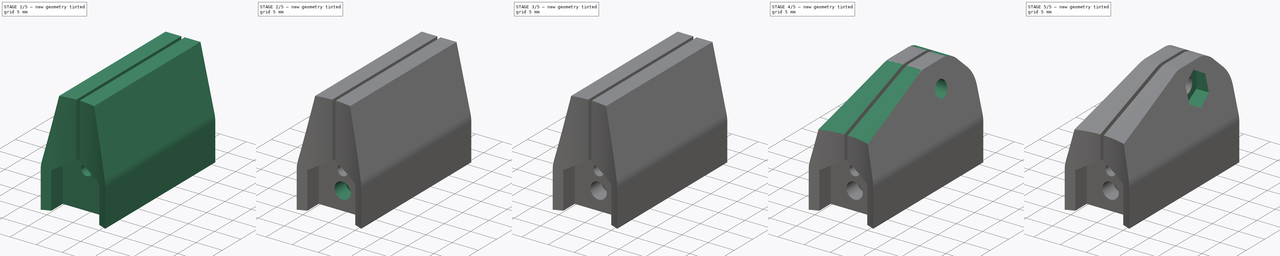
[diagram: build sequence overview — one tinted view per stage of 5, left to right]
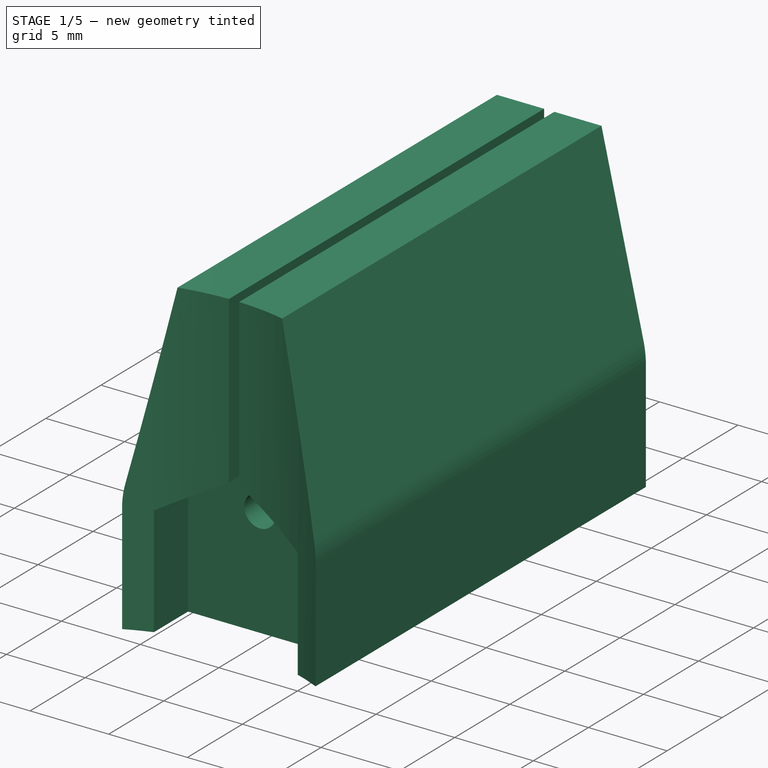
[diagram: stage 1 of 5 — iso view after this stage's code; geometry added in this stage tinted green]
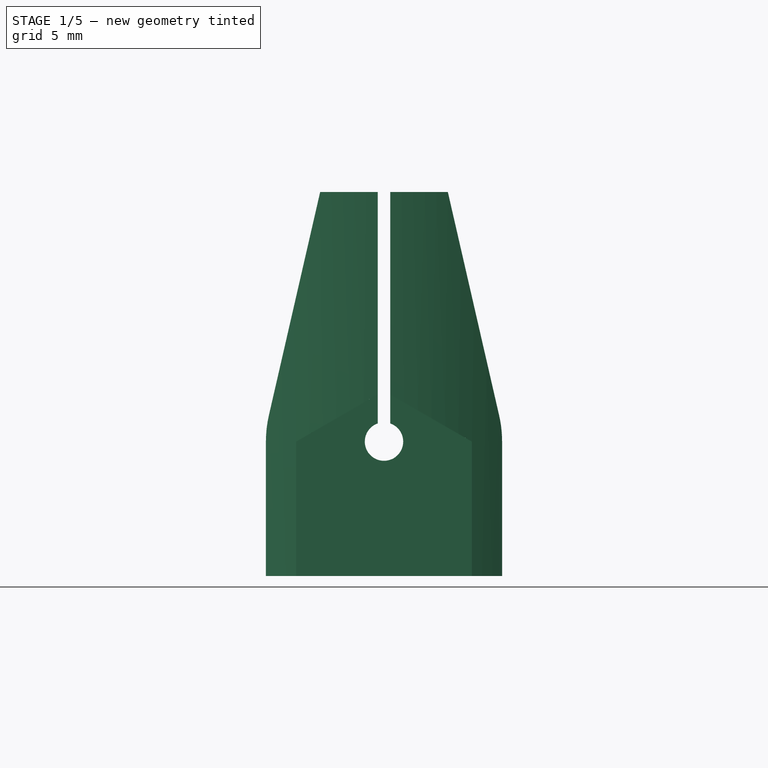
[diagram: stage 1 of 5 — front view after this stage's code; geometry added in this stage tinted green]
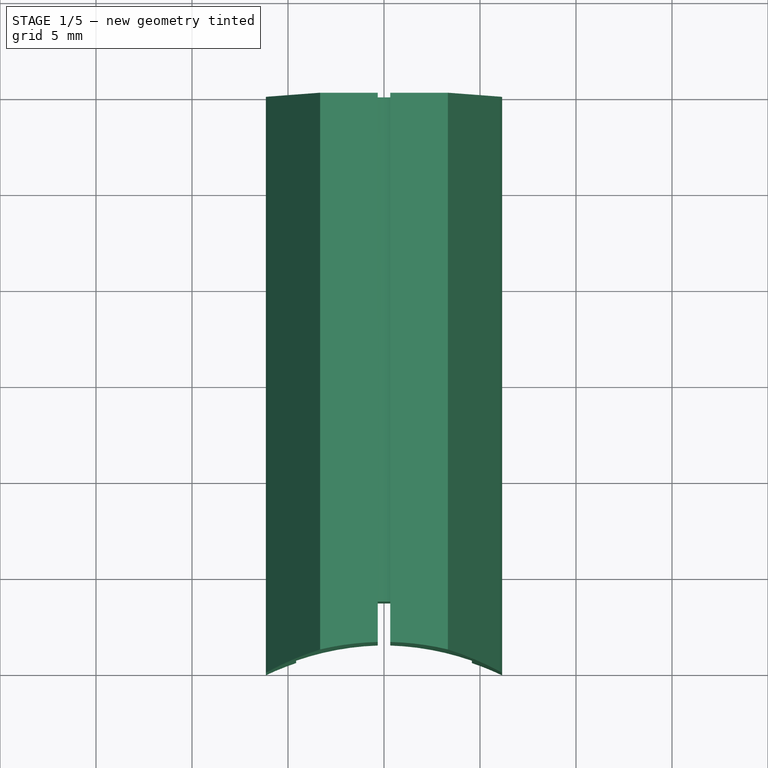
[diagram: stage 1 of 5 — top view after this stage's code; geometry added in this stage tinted green]
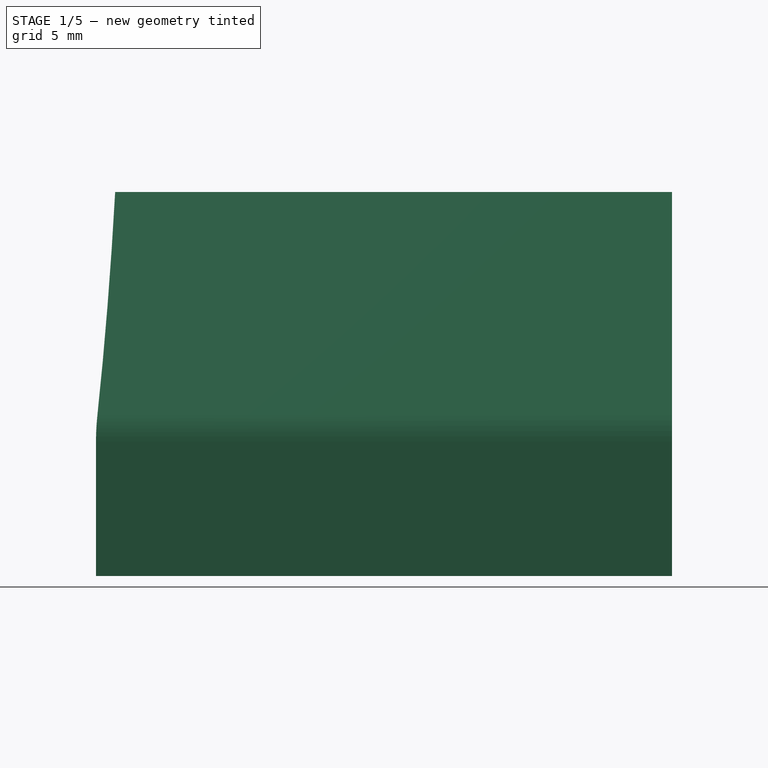
[diagram: stage 1 of 5 — right view after this stage's code; geometry added in this stage tinted green]
FCSTD DOCUMENT  (FreeCAD 0.16RUnknown)
Label: joint-base-i.010.3
License: All rights reserved
LicenseURL: http://en.wikipedia.org/wiki/All_rights_reserved
objects: Sketcher::SketchObject×11, PartDesign::Pocket×7, Part::Fillet×5, Part::Extrusion×4, Part::Cut×3, Part::Chamfer×2
note: 39 computed .brp shape members not serialized (recipe doc carries the construction recipe); baked Part::Feature solids carry a one-line shape summary decoded from their .brp

FEATURE [Sketcher::SketchObject] Sketch
  Placement = pos=(0,0,0) rot=(-1,0,0;4.71239rad)
  sketch-geometry (15):
    g0: Circle [constr] CenterX=0 CenterY=0 CenterZ=0 NormalX=0 NormalY=0 NormalZ=1 Radius=4.15
    g1: ArcOfCircle CenterX=0 CenterY=0 CenterZ=0 NormalX=0 NormalY=0 NormalZ=1 Radius=6.15 StartAngle=2.91589 EndAngle=3.14159
    g2: ArcOfCircle CenterX=0 CenterY=0 CenterZ=0 NormalX=0 NormalY=0 NormalZ=1 Radius=6.15 StartAngle=6.28319 EndAngle=6.50889
    g3: LineSegment [constr] StartX=4.15 StartY=0 StartZ=0 EndX=6.15 EndY=0 EndZ=0
    g4: LineSegment StartX=-6.15 StartY=3.44126e-05 StartZ=0 EndX=-6.15 EndY=-6.99997 EndZ=0
    g5: LineSegment StartX=-6.15 StartY=-6.99997 StartZ=0 EndX=6.15 EndY=-6.99997 EndZ=0
    g6: LineSegment StartX=6.15 StartY=-6.99997 StartZ=0 EndX=6.15 EndY=-1.6538e-08 EndZ=0
    g7: ArcOfCircle CenterX=0 CenterY=0 CenterZ=0 NormalX=0 NormalY=0 NormalZ=1 Radius=1 StartAngle=1.90181 EndAngle=7.52297
    g8: LineSegment [constr] StartX=-0.325 StartY=0.945714 StartZ=0 EndX=0.325 EndY=0.945714 EndZ=0
    g9: LineSegment StartX=-5.99401 StartY=1.37634 StartZ=0 EndX=-3.325 EndY=13 EndZ=0
    g10: LineSegment StartX=-3.325 StartY=13 StartZ=0 EndX=-0.325 EndY=13 EndZ=0
    g11: LineSegment StartX=-0.325 StartY=13 StartZ=0 EndX=-0.325 EndY=0.945714 EndZ=0
    g12: LineSegment StartX=5.99401 StartY=1.37634 StartZ=0 EndX=3.325 EndY=13 EndZ=0
    g13: LineSegment StartX=3.325 StartY=13 StartZ=0 EndX=0.325 EndY=13 EndZ=0
    g14: LineSegment StartX=0.325 StartY=13 StartZ=0 EndX=0.325 EndY=0.945714 EndZ=0
  constraints (44):
    c: Coincident(g0,g-1)
    c: Radius(g0) = 4.15
    c: Coincident(g0,g1)
    c: Coincident(g0,g2)
    c: Equal(g2,g1)
    c: Horizontal(g3)
    c: PointOnObject(g3,g0)
    c: PointOnObject(g3,g2)
    c: PointOnObject(g3,g-1)
    c: Coincident(g4,g5)
    c: Horizontal(g5)
    c: Coincident(g5,g6)
    c: Coincident(g1,g4)
    c: Coincident(g2,g6)
    c: DistanceX(g3,g3) = 2
    c: Vertical(g4)
    c: Vertical(g6)
    c: Tangent(g1,g4)
    c: Tangent(g2,g6)
    c: Coincident(g0,g7)
    c: Horizontal(g8)
    c: Coincident(g7,g8)
    c: Coincident(g7,g8)
    c: Radius(g7) = 1
    c: Coincident(g9,g10)
    c: Horizontal(g10)
    c: Coincident(g10,g11)
    c: Vertical(g11)
    c: Coincident(g12,g13)
    c: Horizontal(g13)
    c: Coincident(g13,g14)
    c: Vertical(g14)
    c: Coincident(g7,g14)
    c: Coincident(g7,g11)
    c: DistanceX(g8,g8) = 0.65
    c: Equal(g11,g14)
    c: Coincident(g1,g9)
    c: Coincident(g2,g12)
    c: Tangent(g1,g9)
    c: Tangent(g2,g12)
    c: DistanceX(g10,g10) = 3
    c: Equal(g10,g13)
    c: DistanceY(g-1,g9) = 13
    c: DistanceY(g4,g4) = 7
FEATURE [Part::Extrusion] Extrude
  Base = -> Sketch
  Dir = (0,30,0)
  Solid = true
FEATURE [Sketcher::SketchObject] Sketch001
  ExternalGeometry = -> [Extrude]
  Placement = pos=(0,0,-6.99997) rot=(1,0,0;3.14159rad)
  Support = -> Extrude [Face3]
  sketch-geometry (2):
    g0: LineSegment StartX=-6.15 StartY=0 StartZ=0 EndX=6.15 EndY=0 EndZ=0
    g1: ArcOfCircle CenterX=0 CenterY=12.91 CenterZ=0 NormalX=0 NormalY=0 NormalZ=1 Radius=14.3 StartAngle=4.26782 EndAngle=5.15696
  constraints (6):
    c: Horizontal(g0)
    c: Coincident(g0,g1)
    c: Coincident(g0,g-3)
    c: Coincident(g0,g1)
    c: Coincident(g0,g-3)
    c: Radius(g1) = 14.3
FEATURE [PartDesign::Pocket] Pocket
  Length = 5
  Sketch = -> Sketch001
  Type = 1
FEATURE [Sketcher::SketchObject] Sketch002
  ExternalGeometry = -> [Pocket]
  Placement = pos=(0,0,-6.99997) rot=(1,0,0;3.14159rad)
  Support = -> Pocket [Face6]
  sketch-geometry (4):
    g0: LineSegment StartX=-4.575 StartY=-0.638432 StartZ=0 EndX=4.575 EndY=-0.638432 EndZ=0
    g1: LineSegment StartX=4.575 StartY=-0.638432 StartZ=0 EndX=4.575 EndY=-3.73843 EndZ=0
    g2: LineSegment StartX=4.575 StartY=-3.73843 StartZ=0 EndX=-4.575 EndY=-3.73843 EndZ=0
    g3: LineSegment StartX=-4.575 StartY=-3.73843 StartZ=0 EndX=-4.575 EndY=-0.638432 EndZ=0
  constraints (12):
    c: Coincident(g0,g1)
    c: Coincident(g1,g2)
    c: Coincident(g2,g3)
    c: Coincident(g3,g0)
    c: Horizontal(g0)
    c: Horizontal(g2)
    c: Vertical(g1)
    c: Vertical(g3)
    c: PointOnObject(g0,g-3)
    c: PointOnObject(g0,g-3)
    c: DistanceX(g2,g2) = 9.15
    c: DistanceY(g1,g1) = 3.1
FEATURE [PartDesign::Pocket] Pocket001
  Length = 7
  Sketch = -> Sketch002
  Type = 0
FEATURE [Sketcher::SketchObject] Sketch003
  ExternalGeometry = -> [Pocket001]
  Placement = pos=(0,3.73843,0) rot=(1,0,0;1.5708rad)
  Support = -> Pocket001 [Face17]
  sketch-geometry (3):
    g0: LineSegment StartX=4.575 StartY=3.44126e-05 StartZ=0 EndX=-4.575 EndY=3.44126e-05 EndZ=0
    g1: LineSegment StartX=-4.575 StartY=3.44126e-05 StartZ=0 EndX=0 EndY=2.64141 EndZ=0
    g2: LineSegment StartX=0 StartY=2.64141 StartZ=0 EndX=4.575 EndY=3.44126e-05 EndZ=0
  constraints (8):
    c: Horizontal(g0)
    c: Coincident(g0,g1)
    c: Coincident(g1,g2)
    c: Coincident(g0,g2)
    c: Coincident(g0,g-4)
    c: Coincident(g0,g-3)
    c: PointOnObject(g1,g-2)
    c: Angle(g1,g2) = 2.0944
FEATURE [PartDesign::Pocket] Pocket002
  Length = 5
  Reversed = true
  Sketch = -> Sketch003
  Type = 1
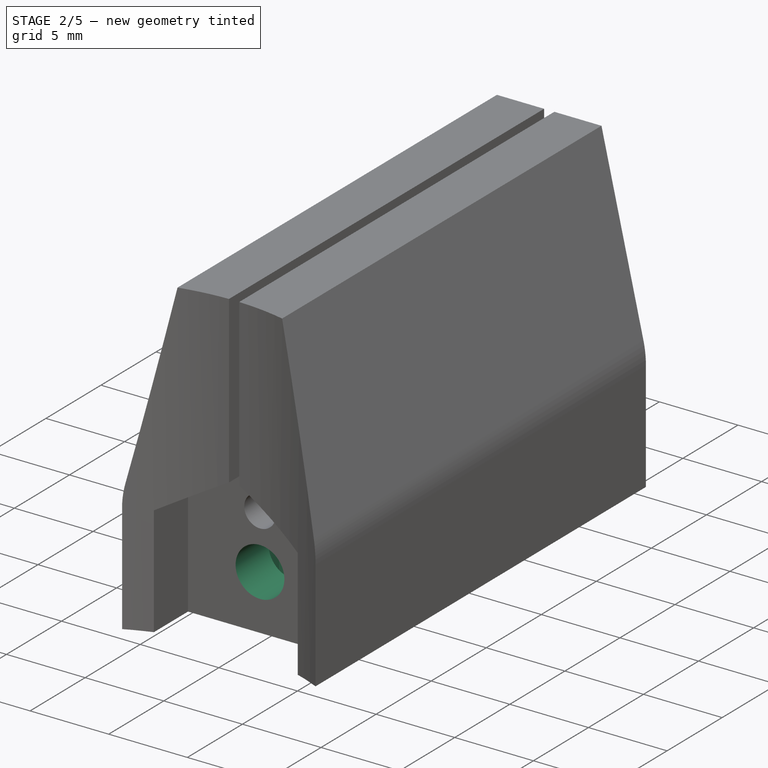
[diagram: stage 2 of 5 — iso view after this stage's code; geometry added in this stage tinted green]
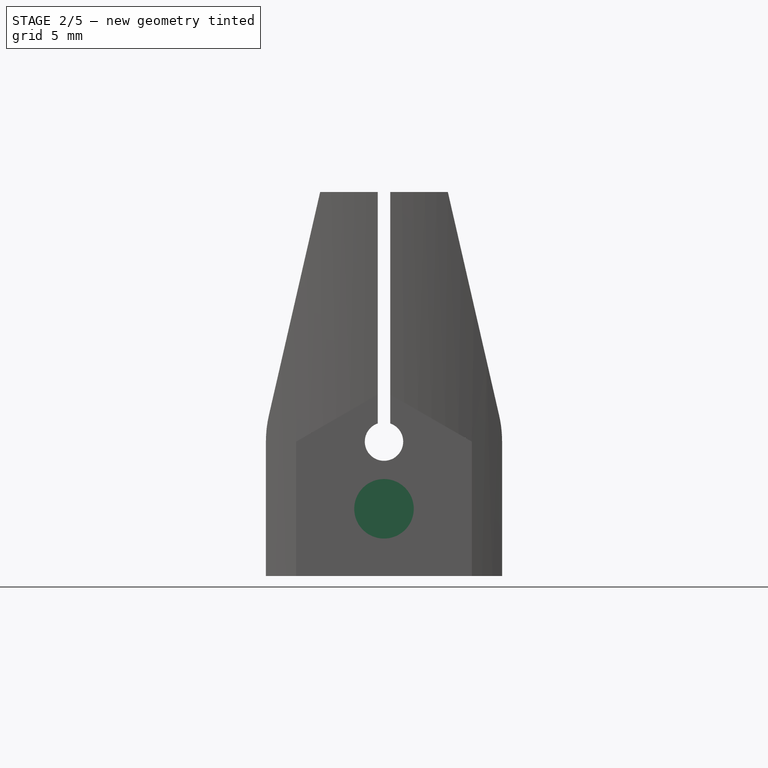
[diagram: stage 2 of 5 — front view after this stage's code; geometry added in this stage tinted green]
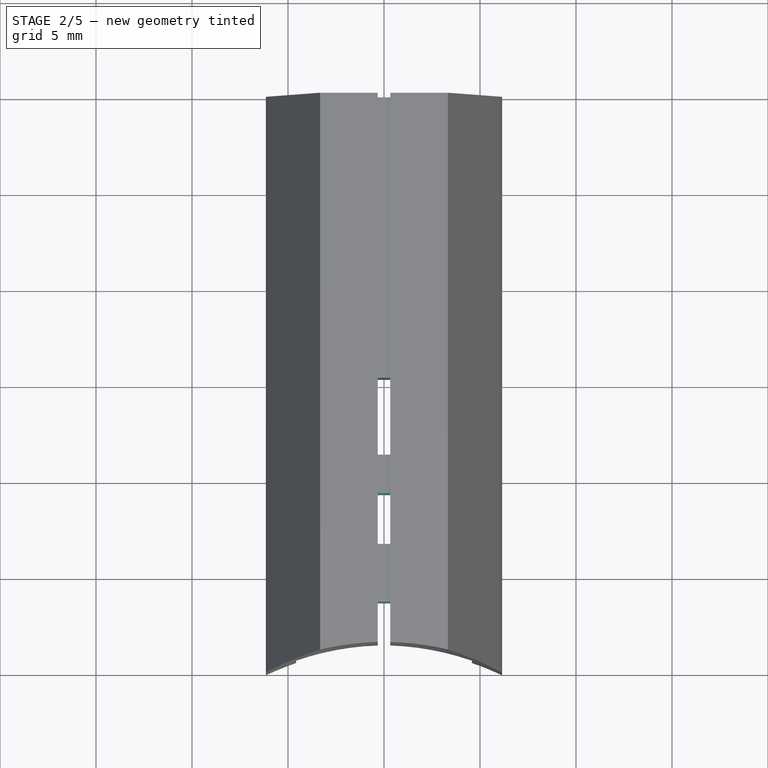
[diagram: stage 2 of 5 — top view after this stage's code; geometry added in this stage tinted green]
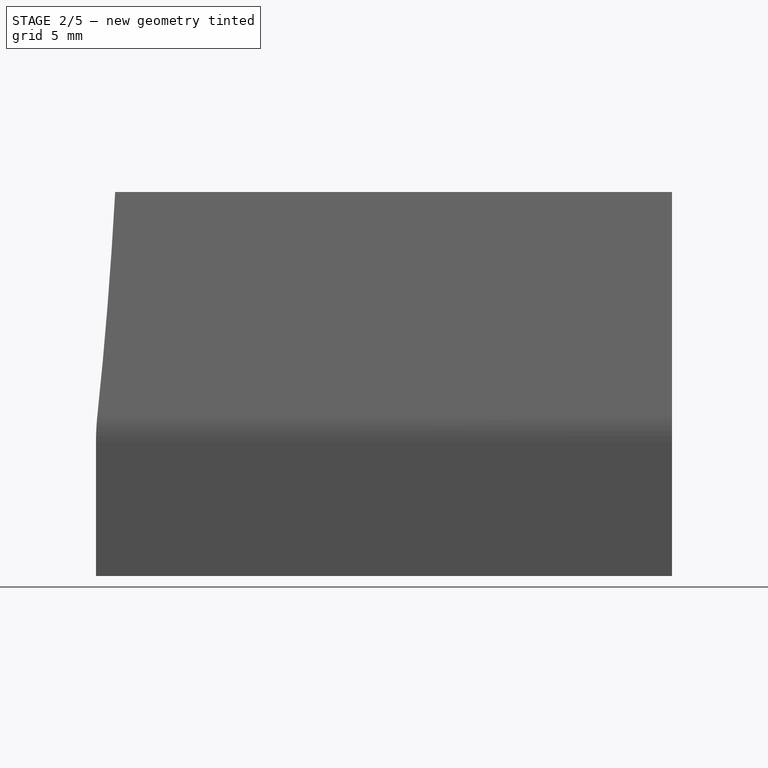
[diagram: stage 2 of 5 — right view after this stage's code; geometry added in this stage tinted green]
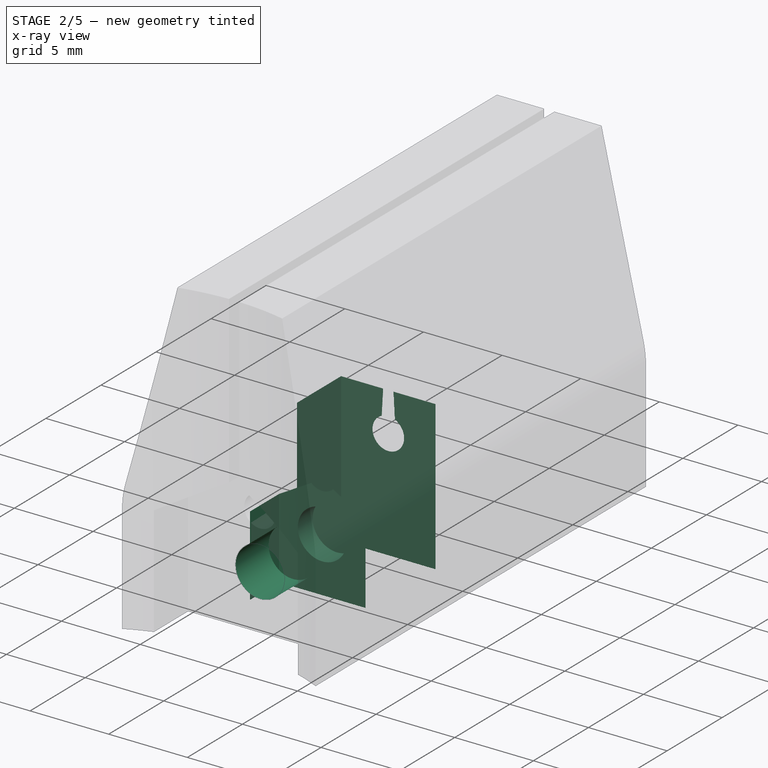
[diagram: stage 2 of 5 — x-ray composite at the iso view; earlier geometry ghosted, this stage's added geometry solid]
FEATURE [Sketcher::SketchObject] Sketch004
  ExternalGeometry = -> [Pocket002]
  Placement = pos=(0,3.73843,0) rot=(1,0,0;1.5708rad)
  Support = -> Pocket002 [Face17]
  sketch-geometry (3):
    g0: LineSegment [constr] StartX=-4.575 StartY=-6.99997 StartZ=0 EndX=0 EndY=-3.49997 EndZ=0
    g1: LineSegment [constr] StartX=0 StartY=-3.49997 StartZ=0 EndX=4.575 EndY=3.44126e-05 EndZ=0
    g2: Circle CenterX=0 CenterY=-3.49997 CenterZ=0 NormalX=0 NormalY=0 NormalZ=1 Radius=1.55
  constraints (7):
    c: Coincident(g0,g1)
    c: Coincident(g1,g-4)
    c: Coincident(g0,g-3)
    c: Parallel(g0,g1)
    c: Equal(g0,g1)
    c: Coincident(g0,g2)
    c: Radius(g2) = 1.55
FEATURE [PartDesign::Pocket] Pocket003
  Length = 7
  Sketch = -> Sketch004
  Type = 0
FEATURE [Sketcher::SketchObject] Sketch005
  ExternalGeometry = -> [Pocket003]
  Placement = pos=(0,3.73843,0) rot=(1,0,0;1.5708rad)
  Support = -> Pocket003 [Face17]
  sketch-geometry (6):
    g0: LineSegment StartX=-2.75 StartY=-6.99997 StartZ=0 EndX=2.75 EndY=-6.99997 EndZ=0
    g1: LineSegment StartX=2.75 StartY=-6.99997 StartZ=0 EndX=2.75 EndY=-1.91225 EndZ=0
    g2: LineSegment StartX=2.75 StartY=-1.91225 StartZ=0 EndX=0 EndY=-0.324539 EndZ=0
    g3: LineSegment StartX=0 StartY=-0.324539 StartZ=0 EndX=-2.75 EndY=-1.91225 EndZ=0
    g4: LineSegment StartX=-2.75 StartY=-1.91225 StartZ=0 EndX=-2.75 EndY=-6.99997 EndZ=0
    g5: LineSegment [constr] StartX=0 StartY=-0.324539 StartZ=0 EndX=0 EndY=-3.49997 EndZ=0
  constraints (17):
    c: Horizontal(g0)
    c: Coincident(g0,g1)
    c: Vertical(g1)
    c: Coincident(g1,g2)
    c: Coincident(g2,g3)
    c: Coincident(g3,g4)
    c: Vertical(g4)
    c: Coincident(g0,g4)
    c: Vertical(g5)
    c: Coincident(g2,g5)
    c: Coincident(g5,g-3)
    c: Equal(g5,g3)
    c: Equal(g3,g2)
    c: Angle(g3,g2) = 2.0944
    c: Equal(g1,g4)
    c: DistanceX(g0,g0) = 5.5
    c: PointOnObject(g0,g-4)
FEATURE [Part::Extrusion] Extrude001
  Base = -> Sketch005
  Dir = (0,2.65,0)
  Placement = pos=(0,3,0) rot=(0,0,1;0rad)
  Solid = true
FEATURE [Part::Cut] Cut
  Base = -> Pocket003
  Tool = -> Extrude001
FEATURE [Sketcher::SketchObject] Sketch006
  ExternalGeometry = -> [Cut]
  Placement = pos=(0,0,-6.99997) rot=(1,0,0;3.14159rad)
  Support = -> Cut [Face6]
  sketch-geometry (6):
    g0: LineSegment StartX=-3 StartY=-11.3884 StartZ=0 EndX=3 EndY=-11.3884 EndZ=0
    g1: LineSegment StartX=3 StartY=-11.3884 StartZ=0 EndX=3 EndY=-15.3884 EndZ=0
    g2: LineSegment StartX=3 StartY=-15.3884 StartZ=0 EndX=-3 EndY=-15.3884 EndZ=0
    g3: LineSegment StartX=-3 StartY=-15.3884 StartZ=0 EndX=-3 EndY=-11.3884 EndZ=0
    g4: LineSegment [constr] StartX=-3 StartY=-11.3884 StartZ=0 EndX=-2.75 EndY=-9.38843 EndZ=0
    g5: LineSegment [constr] StartX=2.75 StartY=-9.38843 StartZ=0 EndX=3 EndY=-11.3884 EndZ=0
  constraints (16):
    c: Coincident(g0,g1)
    c: Coincident(g1,g2)
    c: Coincident(g2,g3)
    c: Coincident(g3,g0)
    c: Horizontal(g0)
    c: Horizontal(g2)
    c: Vertical(g1)
    c: Vertical(g3)
    c: DistanceX(g2,g2) = 6
    c: Coincident(g4,g-3)
    c: Coincident(g0,g4)
    c: Coincident(g0,g5)
    c: Coincident(g5,g-3)
    c: Equal(g5,g4)
    c: DistanceY(g4,g4) = 2
    c: DistanceY(g3,g3) = 4
FEATURE [PartDesign::Pocket] Pocket004
  Length = 9.5
  Sketch = -> Sketch006
  Type = 0
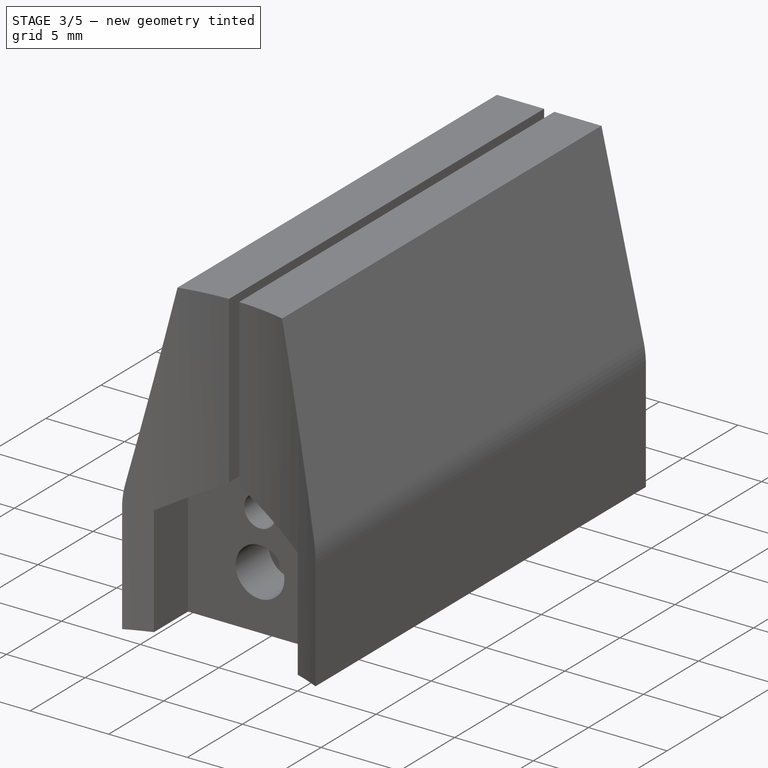
[diagram: stage 3 of 5 — iso view after this stage's code; geometry added in this stage tinted green]
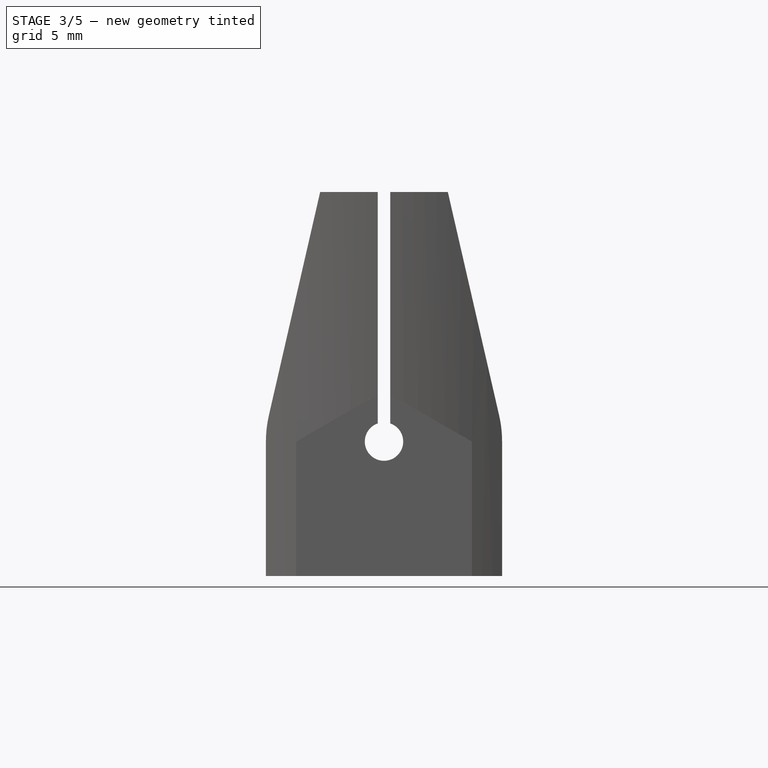
[diagram: stage 3 of 5 — front view after this stage's code; geometry added in this stage tinted green]
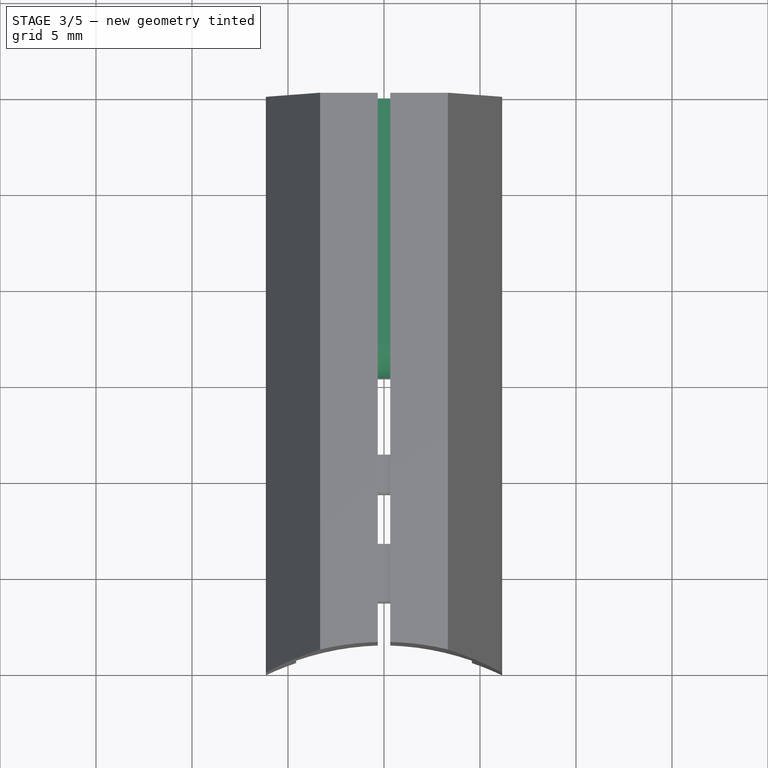
[diagram: stage 3 of 5 — top view after this stage's code; geometry added in this stage tinted green]
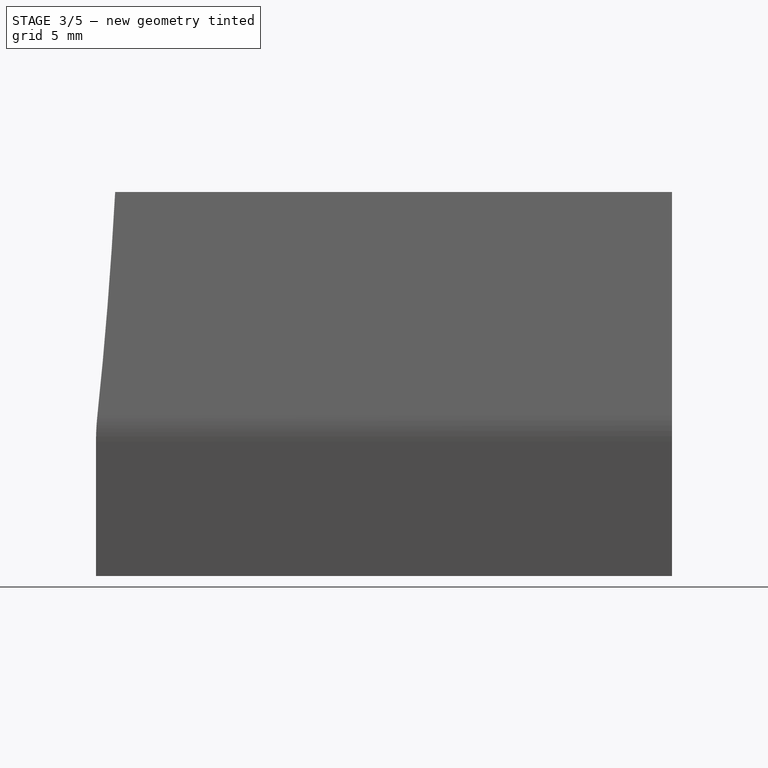
[diagram: stage 3 of 5 — right view after this stage's code; geometry added in this stage tinted green]
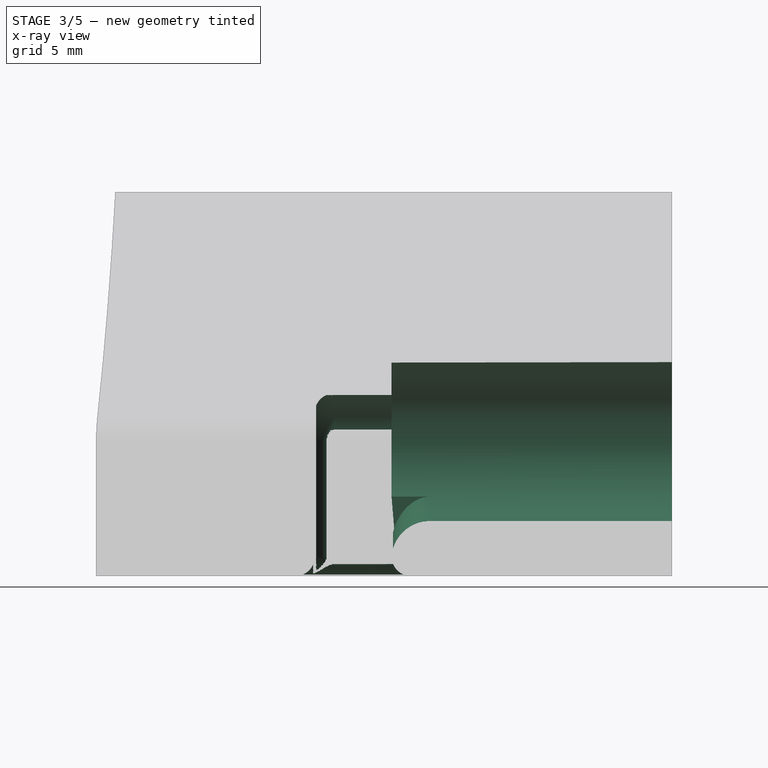
[diagram: stage 3 of 5 — x-ray composite at the right view; earlier geometry ghosted, this stage's added geometry solid]
FEATURE [Sketcher::SketchObject] Sketch007
  Placement = pos=(0,30,0) rot=(0,0.707107,0.707107;3.14159rad)
  Support = -> Pocket004 [Face4]
  sketch-geometry (1):
    g0: Circle CenterX=0 CenterY=0 CenterZ=0 NormalX=0 NormalY=0 NormalZ=1 Radius=4.15
  constraints (2):
    c: Coincident(g0,g-1)
    c: Radius(g0) = 4.15
FEATURE [PartDesign::Pocket] Pocket005
  Length = 0
  Sketch = -> Sketch007
  Type = 3
  UpToFace = -> Pocket004 [Face20]
FEATURE [Part::Fillet] Fillet
  Base = -> Pocket005
  Edges = 2 edges r=2.5: [Edge82,Edge89]
FEATURE [Part::Fillet] Fillet001
  Base = -> Fillet
  Edges = 6 edges r=1: [Edge1,Edge6,Edge8,Edge9,Edge11,Edge13]
FEATURE [Part::Fillet] Fillet002
  Base = -> Fillet001
  Edges = 1 edges r=2: [Edge32]
FEATURE [Part::Fillet] Fillet003
  Base = -> Fillet002
  Edges = 6 edges r=1: [Edge3,Edge10,Edge13,Edge14,Edge15,Edge16]
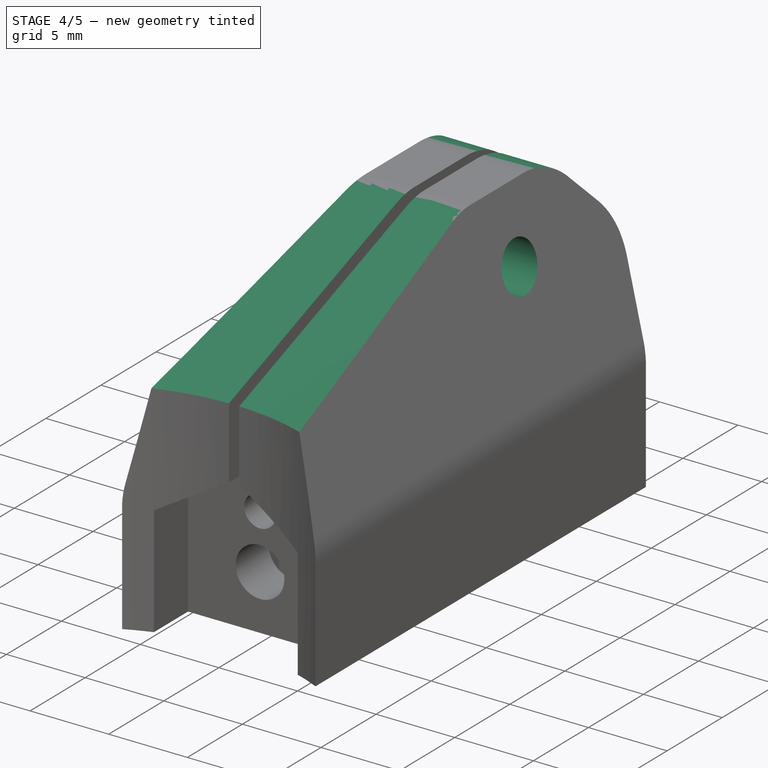
[diagram: stage 4 of 5 — iso view after this stage's code; geometry added in this stage tinted green]
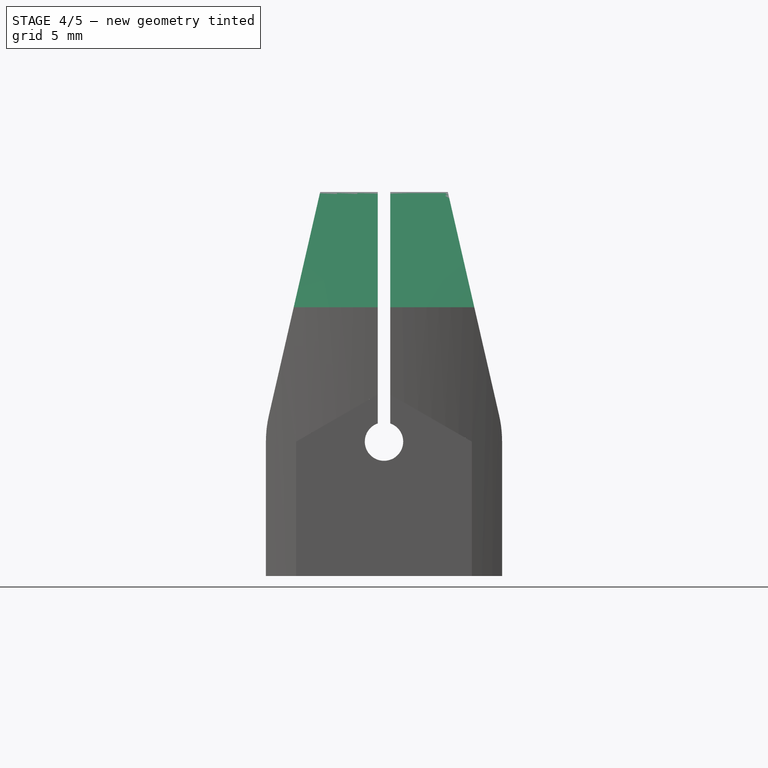
[diagram: stage 4 of 5 — front view after this stage's code; geometry added in this stage tinted green]
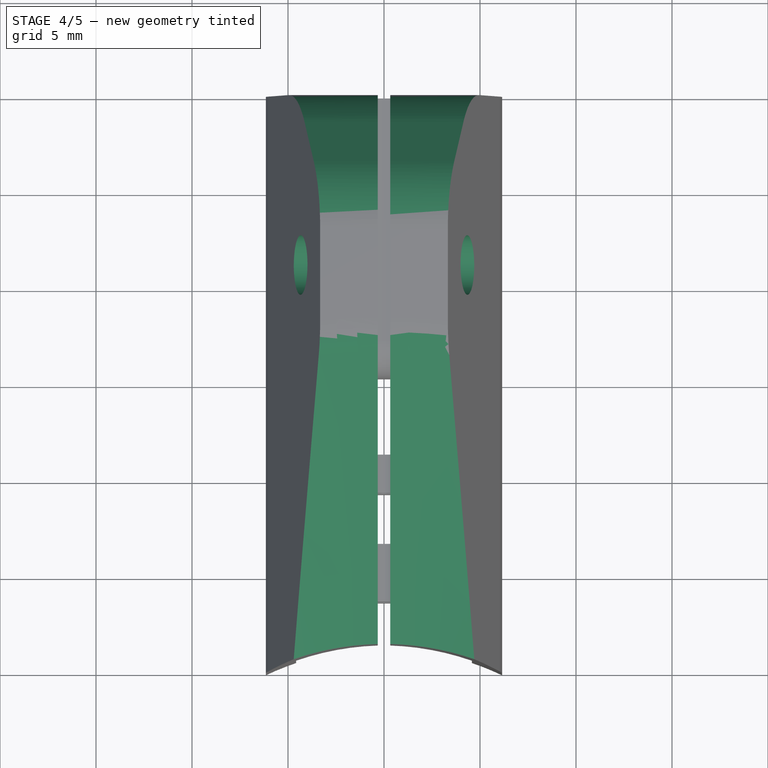
[diagram: stage 4 of 5 — top view after this stage's code; geometry added in this stage tinted green]
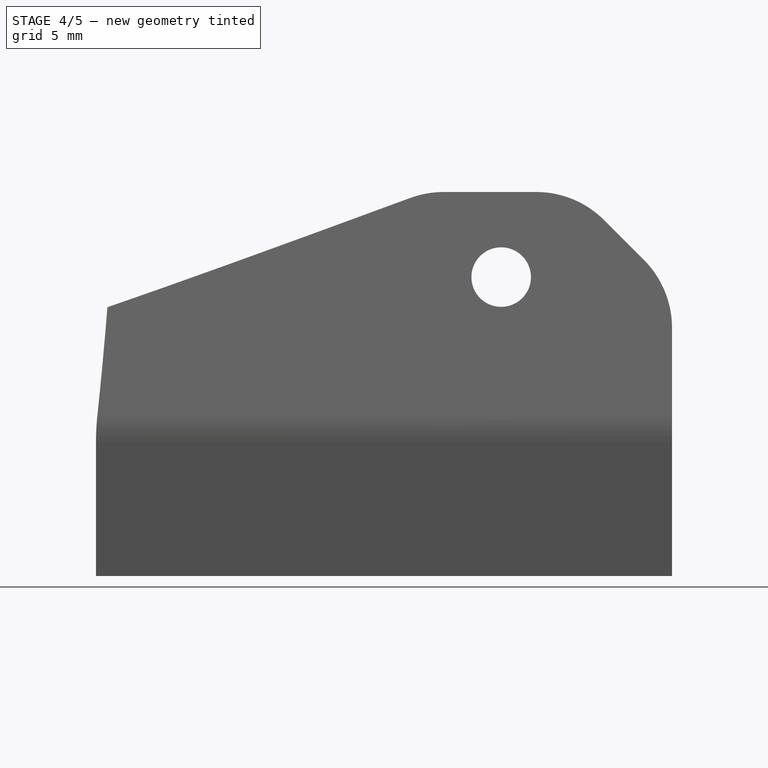
[diagram: stage 4 of 5 — right view after this stage's code; geometry added in this stage tinted green]
FEATURE [Part::Chamfer] Chamfer
  Base = -> Fillet003
  Edges = 2 edges: [Edge100 r1=6 r2=16,Edge118 r1=6 r2=16]
FEATURE [Part::Chamfer] Chamfer001
  Base = -> Chamfer
  Edges = 2 edges r=5: [Edge24,Edge29]
FEATURE [Sketcher::SketchObject] Sketch008
  ExternalGeometry = -> [Chamfer001]
  Placement = pos=(-0.325,0,0) rot=(0.57735,0.57735,0.57735;2.0944rad)
  Support = -> Chamfer001 [Face19]
  sketch-geometry (5):
    g0: LineSegment [constr] StartX=17.207 StartY=13 StartZ=0 EndX=21.1035 EndY=13 EndZ=0
    g1: LineSegment [constr] StartX=21.1035 StartY=13 StartZ=0 EndX=25 EndY=13 EndZ=0
    g2: LineSegment [constr] StartX=21.1035 StartY=13 StartZ=0 EndX=21.1035 EndY=8.56863 EndZ=0
    g3: LineSegment [constr] StartX=21.1035 StartY=8.56863 StartZ=0 EndX=21.1035 EndY=4.13725 EndZ=0
    g4: Circle CenterX=21.1035 CenterY=8.56863 CenterZ=0 NormalX=0 NormalY=0 NormalZ=1 Radius=1.55
  constraints (14):
    c: Horizontal(g0)
    c: Coincident(g0,g1)
    c: Horizontal(g1)
    c: Vertical(g2)
    c: Coincident(g2,g3)
    c: Vertical(g3)
    c: Coincident(g0,g2)
    c: Equal(g0,g1)
    c: Equal(g2,g3)
    c: Coincident(g0,g-3)
    c: Coincident(g1,g-3)
    c: PointOnObject(g3,g-4)
    c: Coincident(g2,g4)
    c: Radius(g4) = 1.55
FEATURE [PartDesign::Pocket] Pocket006
  Length = 5
  Midplane = true
  Sketch = -> Sketch008
  Type = 1
FEATURE [Part::Fillet] Fillet004
  Base = -> Pocket006
  Edges = 6 edges r=5: [Edge15,Edge16,Edge19,Edge23,Edge80,Edge158]
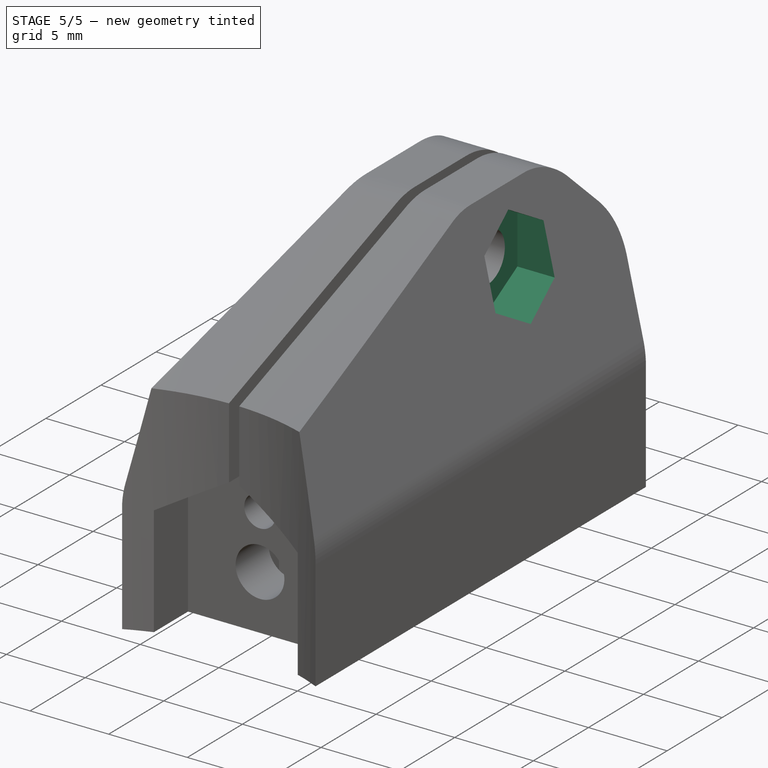
[diagram: stage 5 of 5 — iso view after this stage's code; geometry added in this stage tinted green]
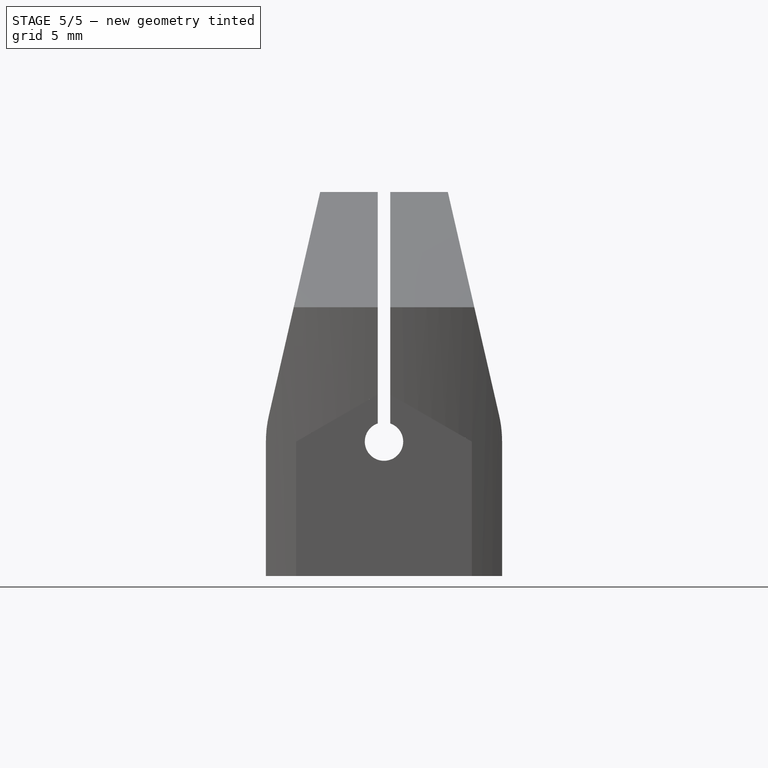
[diagram: stage 5 of 5 — front view after this stage's code; geometry added in this stage tinted green]
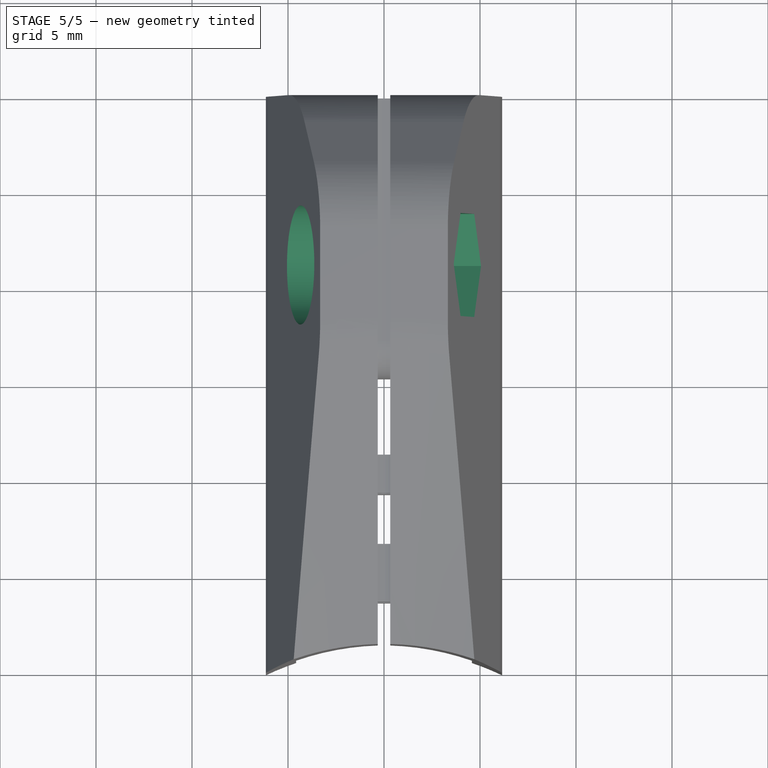
[diagram: stage 5 of 5 — top view after this stage's code; geometry added in this stage tinted green]
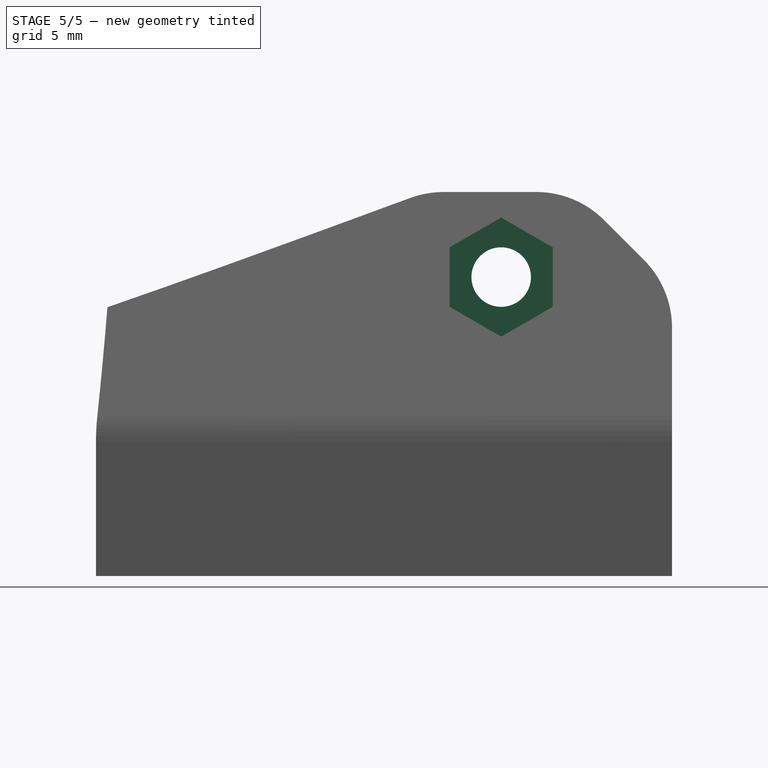
[diagram: stage 5 of 5 — right view after this stage's code; geometry added in this stage tinted green]
FEATURE [Sketcher::SketchObject] Sketch009
  ExternalGeometry = -> [Fillet004]
  Placement = pos=(-0.325,0,0) rot=(0.57735,0.57735,0.57735;2.0944rad)
  Support = -> Fillet004 [Face27]
  sketch-geometry (1):
    g0: Circle CenterX=21.1035 CenterY=8.56863 CenterZ=0 NormalX=0 NormalY=0 NormalZ=1 Radius=3.1
  constraints (2):
    c: Coincident(g0,g-3)
    c: Radius(g0) = 3.1
FEATURE [Sketcher::SketchObject] Sketch010
  ExternalGeometry = -> [Fillet004]
  Placement = pos=(0.325,0,0) rot=(0.57735,-0.57735,-0.57735;2.0944rad)
  Support = -> Fillet004 [Face1]
  sketch-geometry (7):
    g0: LineSegment StartX=-21.1035 StartY=11.6686 StartZ=0 EndX=-23.7882 EndY=10.1186 EndZ=0
    g1: LineSegment StartX=-23.7882 StartY=10.1186 StartZ=0 EndX=-23.7882 EndY=7.01863 EndZ=0
    g2: LineSegment StartX=-23.7882 StartY=7.01863 StartZ=0 EndX=-21.1035 EndY=5.46863 EndZ=0
    g3: LineSegment StartX=-21.1035 StartY=5.46863 StartZ=0 EndX=-18.4188 EndY=7.01863 EndZ=0
    g4: LineSegment StartX=-18.4188 StartY=7.01863 StartZ=0 EndX=-18.4188 EndY=10.1186 EndZ=0
    g5: LineSegment StartX=-18.4188 StartY=10.1186 StartZ=0 EndX=-21.1035 EndY=11.6686 EndZ=0
    g6: Circle [constr] CenterX=-21.1035 CenterY=8.56863 CenterZ=0 NormalX=0 NormalY=0 NormalZ=1 Radius=3.1
  constraints (16):
    c: Coincident(g0,g1)
    c: Coincident(g1,g2)
    c: Coincident(g2,g3)
    c: Coincident(g3,g4)
    c: Coincident(g4,g5)
    c: Coincident(g5,g0)
    c: Equal(g0, g1-g5) x5
    c: PointOnObject(g0,g6)
    c: PointOnObject(g1,g6)
    c: PointOnObject(g2,g6)
    c: PointOnObject(g3,g6)
    c: PointOnObject(g4,g6)
    c: PointOnObject(g5,g6)
    c: Vertical(g4)
    c: Coincident(g6,g-3)
    c: Radius(g6) = 3.1
FEATURE [Part::Extrusion] Extrude002
  Base = -> Sketch009
  Dir = (-10,0,0)
  Placement = pos=(-2,0,0) rot=(0,0,1;0rad)
  Solid = true
FEATURE [Part::Extrusion] Extrude003
  Base = -> Sketch010
  Dir = (10,0,0)
  Placement = pos=(2,0,0) rot=(0,0,1;0rad)
  Solid = true
FEATURE [Part::Cut] Cut001
  Base = -> Fillet004
  Tool = -> Extrude002
FEATURE [Part::Cut] Cut002
  Base = -> Cut001
  Tool = -> Extrude003
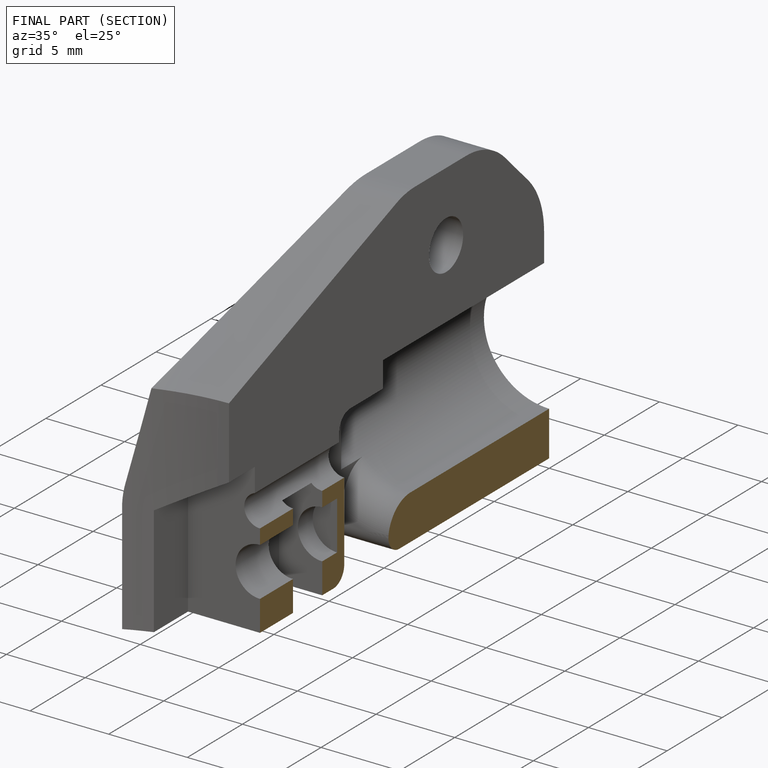
[diagram: finished part — half-section view (interior)]
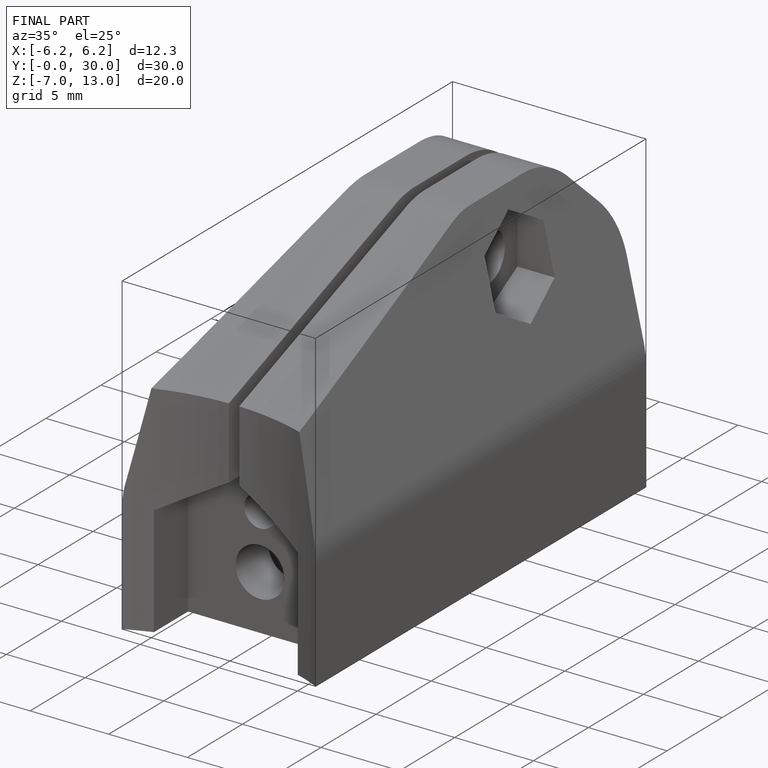
[diagram: finished part — iso view with bounding-box wireframe]
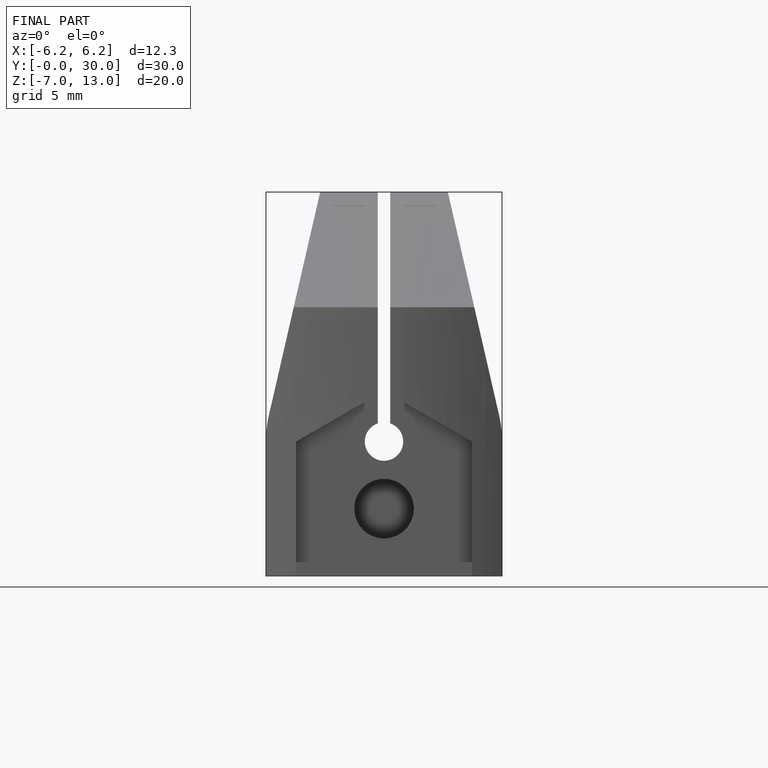
[diagram: finished part — front view with bounding-box wireframe]
